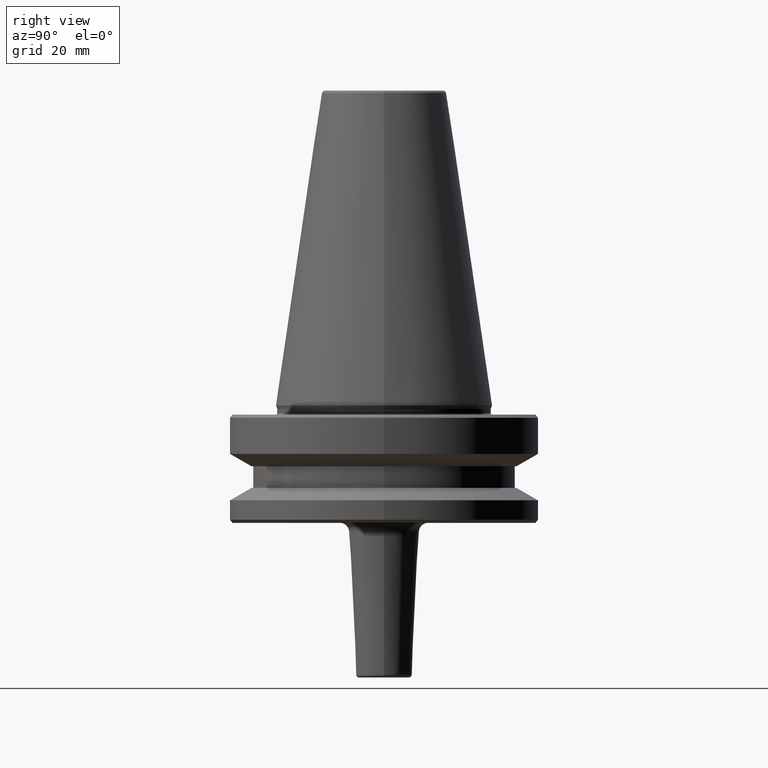
[diagram: clean part render]
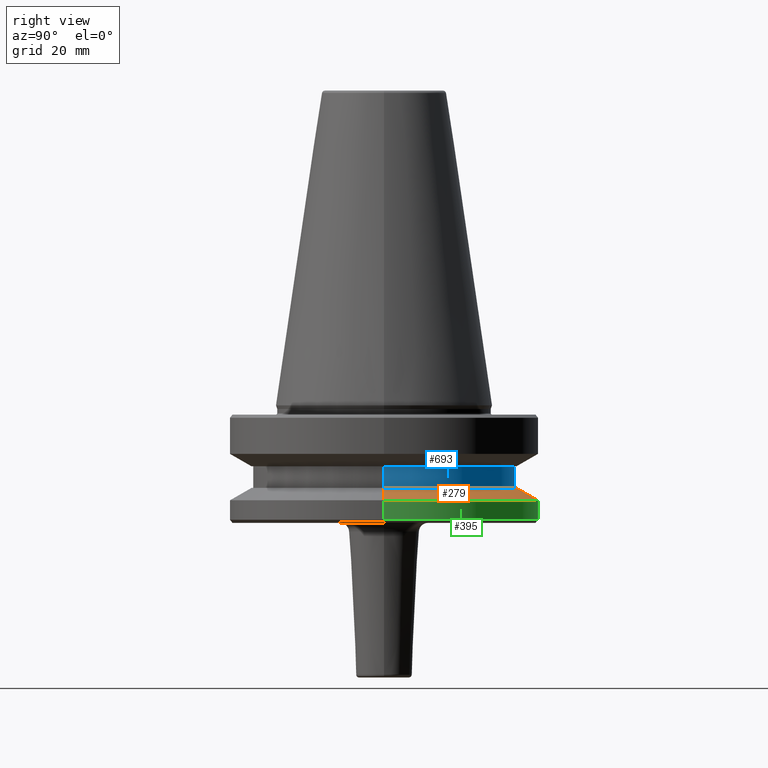
[diagram: same view with three faces highlighted in distinct colors, each labeled with its STEP entity id]
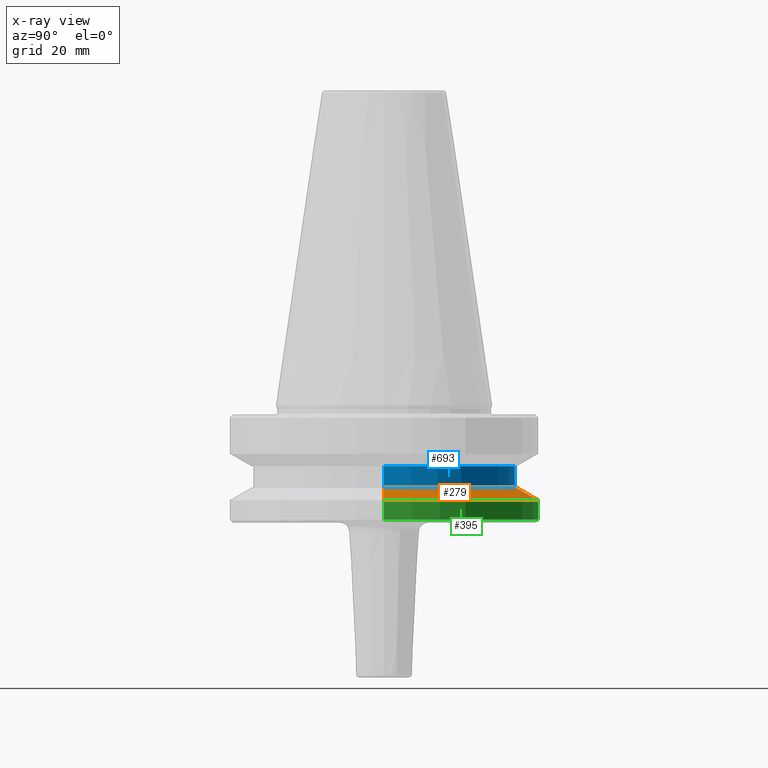
[diagram: x-ray of the same camera — body ghosted, the three highlighted faces saturated]
A machine part, right view with three faces highlighted in distinct colors.
The next image is the same camera in x-ray (body ghosted, the three faces saturated) — at least one of them is partly hidden behind the body in this view.
Their STEP definitions:

[orange] entity #279 — the highlighted conical surface has half-angle 60 deg.
#26 = VERTEX_POINT ( 'NONE', #94 ) ;
#30 = DIRECTION ( 'NONE',  ( -0.0000000000000000000, -0.0000000000000000000, 1.000000000000000000 ) ) ;
#34 = DIRECTION ( 'NONE',  ( -0.8660254037844383700, 0.0000000000000000000, -0.5000000000000004400 ) ) ;
#94 = CARTESIAN_POINT ( 'NONE',  ( -50.00000000000000000, 6.123233995736766100E-015, -30.69977999677324500 ) ) ;
#105 = CARTESIAN_POINT ( 'NONE',  ( 43.07217782649105000, 5.699027233244276800E-015, -26.69999999999998900 ) ) ;
#109 = DIRECTION ( 'NONE',  ( 1.000000000000000000, 0.0000000000000000000, 0.0000000000000000000 ) ) ;
#192 = CARTESIAN_POINT ( 'NONE',  ( -50.00000000000000000, 0.0000000000000000000, -30.69977999677324500 ) ) ;
#198 = CARTESIAN_POINT ( 'NONE',  ( 50.00000000000000000, 6.123233995736766100E-015, -30.69977999677324500 ) ) ;
#226 = VECTOR ( 'NONE', #34, 1000.000000000000000 ) ;
#232 = ORIENTED_EDGE ( 'NONE', *, *, #769, .T. ) ;
#272 = DIRECTION ( 'NONE',  ( 0.0000000000000000000, 0.0000000000000000000, -1.000000000000000000 ) ) ;
#279 = ADVANCED_FACE ( 'NONE', ( #993 ), #758, .T. ) ;
#374 = AXIS2_PLACEMENT_3D ( 'NONE', #481, #30, #577 ) ;
#412 = CIRCLE ( 'NONE', #374, 50.00000000000000000 ) ;
#422 = CARTESIAN_POINT ( 'NONE',  ( -43.07217782649105000, 0.0000000000000000000, -26.69999999999998900 ) ) ;
#428 = LINE ( 'NONE', #192, #226 ) ;
#444 = AXIS2_PLACEMENT_3D ( 'NONE', #786, #272, #647 ) ;
#481 = CARTESIAN_POINT ( 'NONE',  ( 0.0000000000000000000, 0.0000000000000000000, -30.69977999677324500 ) ) ;
#484 = CIRCLE ( 'NONE', #518, 43.07217782649105000 ) ;
#490 = CARTESIAN_POINT ( 'NONE',  ( 0.0000000000000000000, 0.0000000000000000000, -26.69999999999998900 ) ) ;
#498 = EDGE_CURVE ( 'NONE', #763, #668, #531, .T. ) ;
#518 = AXIS2_PLACEMENT_3D ( 'NONE', #490, #656, #109 ) ;
#522 = EDGE_LOOP ( 'NONE', ( #923, #863, #232, #837 ) ) ;
#531 = LINE ( 'NONE', #198, #907 ) ;
#577 = DIRECTION ( 'NONE',  ( 1.000000000000000000, 0.0000000000000000000, 0.0000000000000000000 ) ) ;
#647 = DIRECTION ( 'NONE',  ( -1.000000000000000000, 0.0000000000000000000, 0.0000000000000000000 ) ) ;
#655 = EDGE_CURVE ( 'NONE', #763, #941, #484, .T. ) ;
#656 = DIRECTION ( 'NONE',  ( -0.0000000000000000000, -0.0000000000000000000, 1.000000000000000000 ) ) ;
#668 = VERTEX_POINT ( 'NONE', #678 ) ;
#678 = CARTESIAN_POINT ( 'NONE',  ( 50.00000000000000000, 0.0000000000000000000, -30.69977999677324500 ) ) ;
#758 = CONICAL_SURFACE ( 'NONE', #444, 50.00000000000000000, 1.047197551196597200 ) ;
#763 = VERTEX_POINT ( 'NONE', #105 ) ;
#769 = EDGE_CURVE ( 'NONE', #668, #26, #412, .T. ) ;
#786 = CARTESIAN_POINT ( 'NONE',  ( 0.0000000000000000000, 0.0000000000000000000, -30.69977999677324500 ) ) ;
#796 = EDGE_CURVE ( 'NONE', #941, #26, #428, .T. ) ;
#800 = DIRECTION ( 'NONE',  ( 0.8660254037844383700, 1.060575238724906500E-016, -0.5000000000000004400 ) ) ;
#837 = ORIENTED_EDGE ( 'NONE', *, *, #796, .F. ) ;
#863 = ORIENTED_EDGE ( 'NONE', *, *, #498, .T. ) ;
#907 = VECTOR ( 'NONE', #800, 1000.000000000000000 ) ;
#923 = ORIENTED_EDGE ( 'NONE', *, *, #655, .F. ) ;
#941 = VERTEX_POINT ( 'NONE', #422 ) ;
#993 = FACE_OUTER_BOUND ( 'NONE', #522, .T. ) ;

[blue] entity #693 — the highlighted cylindrical surface (partial cylindrical patch) has radius 42.5 mm, axis along (-0, -0, 1).
#18 = CARTESIAN_POINT ( 'NONE',  ( 42.50000000000000000, 0.0000000000000000000, 124.5046326327850600 ) ) ;
#98 = EDGE_CURVE ( 'NONE', #352, #132, #295, .T. ) ;
#132 = VERTEX_POINT ( 'NONE', #429 ) ;
#153 = CARTESIAN_POINT ( 'NONE',  ( 0.0000000000000000000, 0.0000000000000000000, 124.5046326327850600 ) ) ;
#154 = EDGE_LOOP ( 'NONE', ( #865, #393, #464, #807 ) ) ;
#163 = CIRCLE ( 'NONE', #381, 42.50000000000000000 ) ;
#176 = CIRCLE ( 'NONE', #260, 42.50000000000000000 ) ;
#236 = EDGE_CURVE ( 'NONE', #707, #881, #499, .T. ) ;
#260 = AXIS2_PLACEMENT_3D ( 'NONE', #535, #302, #692 ) ;
#295 = LINE ( 'NONE', #506, #501 ) ;
#300 = CARTESIAN_POINT ( 'NONE',  ( 42.50000000000000000, 0.0000000000000000000, -26.69999999999998900 ) ) ;
#302 = DIRECTION ( 'NONE',  ( -0.0000000000000000000, -0.0000000000000000000, 1.000000000000000000 ) ) ;
#352 = VERTEX_POINT ( 'NONE', #741 ) ;
#381 = AXIS2_PLACEMENT_3D ( 'NONE', #592, #463, #547 ) ;
#393 = ORIENTED_EDGE ( 'NONE', *, *, #98, .T. ) ;
#405 = EDGE_CURVE ( 'NONE', #881, #132, #163, .T. ) ;
#429 = CARTESIAN_POINT ( 'NONE',  ( -42.50000000000000000, 5.204748896376250900E-015, -19.70000000000001000 ) ) ;
#441 = DIRECTION ( 'NONE',  ( 1.000000000000000000, 0.0000000000000000000, 0.0000000000000000000 ) ) ;
#463 = DIRECTION ( 'NONE',  ( -0.0000000000000000000, -0.0000000000000000000, 1.000000000000000000 ) ) ;
#464 = ORIENTED_EDGE ( 'NONE', *, *, #405, .F. ) ;
#480 = DIRECTION ( 'NONE',  ( -0.0000000000000000000, -0.0000000000000000000, 1.000000000000000000 ) ) ;
#499 = LINE ( 'NONE', #18, #972 ) ;
#501 = VECTOR ( 'NONE', #660, 1000.000000000000000 ) ;
#506 = CARTESIAN_POINT ( 'NONE',  ( -42.50000000000000000, 5.204748896376250900E-015, 124.5046326327850600 ) ) ;
#535 = CARTESIAN_POINT ( 'NONE',  ( 0.0000000000000000000, 0.0000000000000000000, -26.69999999999998900 ) ) ;
#547 = DIRECTION ( 'NONE',  ( 1.000000000000000000, 0.0000000000000000000, 0.0000000000000000000 ) ) ;
#592 = CARTESIAN_POINT ( 'NONE',  ( 0.0000000000000000000, 0.0000000000000000000, -19.70000000000001000 ) ) ;
#660 = DIRECTION ( 'NONE',  ( -0.0000000000000000000, -0.0000000000000000000, 1.000000000000000000 ) ) ;
#684 = EDGE_CURVE ( 'NONE', #707, #352, #176, .T. ) ;
#686 = FACE_OUTER_BOUND ( 'NONE', #154, .T. ) ;
#692 = DIRECTION ( 'NONE',  ( 1.000000000000000000, 0.0000000000000000000, 0.0000000000000000000 ) ) ;
#693 = ADVANCED_FACE ( 'NONE', ( #686 ), #973, .T. ) ;
#706 = DIRECTION ( 'NONE',  ( -0.0000000000000000000, -0.0000000000000000000, 1.000000000000000000 ) ) ;
#707 = VERTEX_POINT ( 'NONE', #300 ) ;
#741 = CARTESIAN_POINT ( 'NONE',  ( -42.50000000000000000, 5.204748896376250900E-015, -26.69999999999998900 ) ) ;
#807 = ORIENTED_EDGE ( 'NONE', *, *, #236, .F. ) ;
#846 = CARTESIAN_POINT ( 'NONE',  ( 42.50000000000000000, 0.0000000000000000000, -19.70000000000001000 ) ) ;
#865 = ORIENTED_EDGE ( 'NONE', *, *, #684, .T. ) ;
#881 = VERTEX_POINT ( 'NONE', #846 ) ;
#912 = AXIS2_PLACEMENT_3D ( 'NONE', #153, #480, #441 ) ;
#972 = VECTOR ( 'NONE', #706, 1000.000000000000000 ) ;
#973 = CYLINDRICAL_SURFACE ( 'NONE', #912, 42.50000000000000000 ) ;

[green] entity #395 — the highlighted cylindrical surface (partial cylindrical patch) has radius 50 mm, axis along (-0, -0, 1).
#2 = DIRECTION ( 'NONE',  ( -0.0000000000000000000, -0.0000000000000000000, 1.000000000000000000 ) ) ;
#16 = DIRECTION ( 'NONE',  ( 1.000000000000000000, 0.0000000000000000000, 0.0000000000000000000 ) ) ;
#26 = VERTEX_POINT ( 'NONE', #94 ) ;
#30 = DIRECTION ( 'NONE',  ( -0.0000000000000000000, -0.0000000000000000000, 1.000000000000000000 ) ) ;
#94 = CARTESIAN_POINT ( 'NONE',  ( -50.00000000000000000, 6.123233995736766100E-015, -30.69977999677324500 ) ) ;
#187 = CARTESIAN_POINT ( 'NONE',  ( -50.00000000000000000, 6.123233995736766100E-015, -37.00000000000002100 ) ) ;
#195 = EDGE_LOOP ( 'NONE', ( #600, #978, #204, #801 ) ) ;
#196 = DIRECTION ( 'NONE',  ( -0.0000000000000000000, -0.0000000000000000000, 1.000000000000000000 ) ) ;
#204 = ORIENTED_EDGE ( 'NONE', *, *, #769, .F. ) ;
#282 = LINE ( 'NONE', #744, #676 ) ;
#299 = FACE_OUTER_BOUND ( 'NONE', #195, .T. ) ;
#371 = DIRECTION ( 'NONE',  ( -0.0000000000000000000, -0.0000000000000000000, 1.000000000000000000 ) ) ;
#374 = AXIS2_PLACEMENT_3D ( 'NONE', #481, #30, #577 ) ;
#395 = ADVANCED_FACE ( 'NONE', ( #299 ), #528, .T. ) ;
#402 = AXIS2_PLACEMENT_3D ( 'NONE', #567, #2, #16 ) ;
#412 = CIRCLE ( 'NONE', #374, 50.00000000000000000 ) ;
#436 = CARTESIAN_POINT ( 'NONE',  ( 50.00000000000000000, 0.0000000000000000000, -37.00000000000002100 ) ) ;
#481 = CARTESIAN_POINT ( 'NONE',  ( 0.0000000000000000000, 0.0000000000000000000, -30.69977999677324500 ) ) ;
#527 = CARTESIAN_POINT ( 'NONE',  ( -50.00000000000000000, 6.123233995736766100E-015, 124.5046326327850600 ) ) ;
#528 = CYLINDRICAL_SURFACE ( 'NONE', #402, 50.00000000000000000 ) ;
#554 = AXIS2_PLACEMENT_3D ( 'NONE', #682, #371, #834 ) ;
#567 = CARTESIAN_POINT ( 'NONE',  ( 0.0000000000000000000, 0.0000000000000000000, 124.5046326327850600 ) ) ;
#573 = VECTOR ( 'NONE', #196, 1000.000000000000000 ) ;
#577 = DIRECTION ( 'NONE',  ( 1.000000000000000000, 0.0000000000000000000, 0.0000000000000000000 ) ) ;
#599 = VERTEX_POINT ( 'NONE', #436 ) ;
#600 = ORIENTED_EDGE ( 'NONE', *, *, #674, .T. ) ;
#632 = CIRCLE ( 'NONE', #554, 50.00000000000000000 ) ;
#668 = VERTEX_POINT ( 'NONE', #678 ) ;
#674 = EDGE_CURVE ( 'NONE', #599, #967, #632, .T. ) ;
#676 = VECTOR ( 'NONE', #903, 1000.000000000000000 ) ;
#678 = CARTESIAN_POINT ( 'NONE',  ( 50.00000000000000000, 0.0000000000000000000, -30.69977999677324500 ) ) ;
#682 = CARTESIAN_POINT ( 'NONE',  ( 0.0000000000000000000, 0.0000000000000000000, -37.00000000000002100 ) ) ;
#744 = CARTESIAN_POINT ( 'NONE',  ( 50.00000000000000000, 0.0000000000000000000, 124.5046326327850600 ) ) ;
#748 = LINE ( 'NONE', #527, #573 ) ;
#769 = EDGE_CURVE ( 'NONE', #668, #26, #412, .T. ) ;
#801 = ORIENTED_EDGE ( 'NONE', *, *, #924, .F. ) ;
#834 = DIRECTION ( 'NONE',  ( 1.000000000000000000, 0.0000000000000000000, 0.0000000000000000000 ) ) ;
#856 = EDGE_CURVE ( 'NONE', #967, #26, #748, .T. ) ;
#903 = DIRECTION ( 'NONE',  ( -0.0000000000000000000, -0.0000000000000000000, 1.000000000000000000 ) ) ;
#924 = EDGE_CURVE ( 'NONE', #599, #668, #282, .T. ) ;
#967 = VERTEX_POINT ( 'NONE', #187 ) ;
#978 = ORIENTED_EDGE ( 'NONE', *, *, #856, .T. ) ;